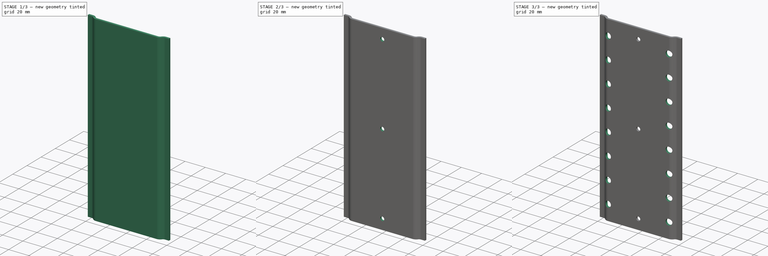
[diagram: build sequence overview — one tinted view per stage of 3, left to right]
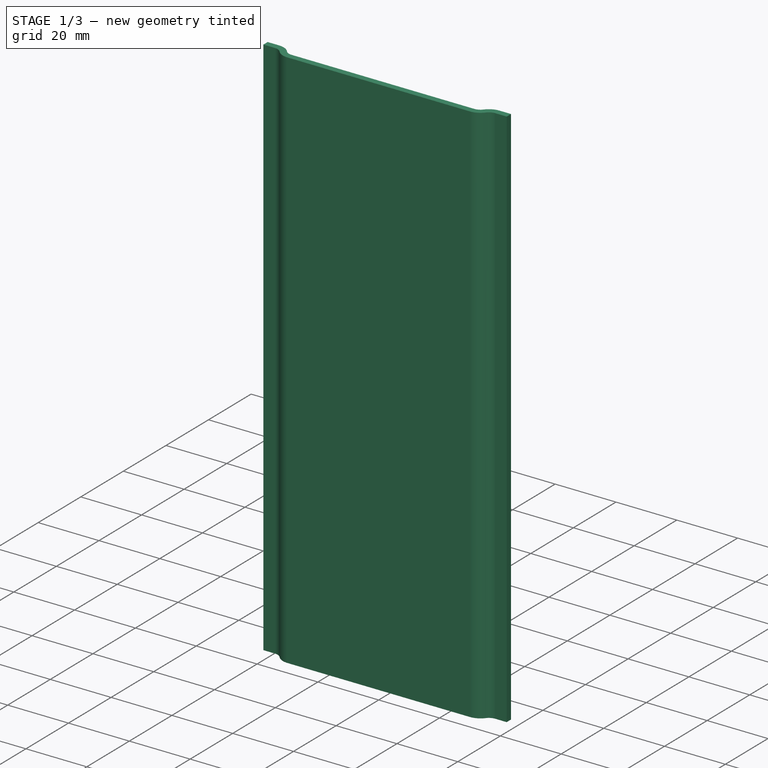
[diagram: stage 1 of 3 — iso view after this stage's code; geometry added in this stage tinted green]
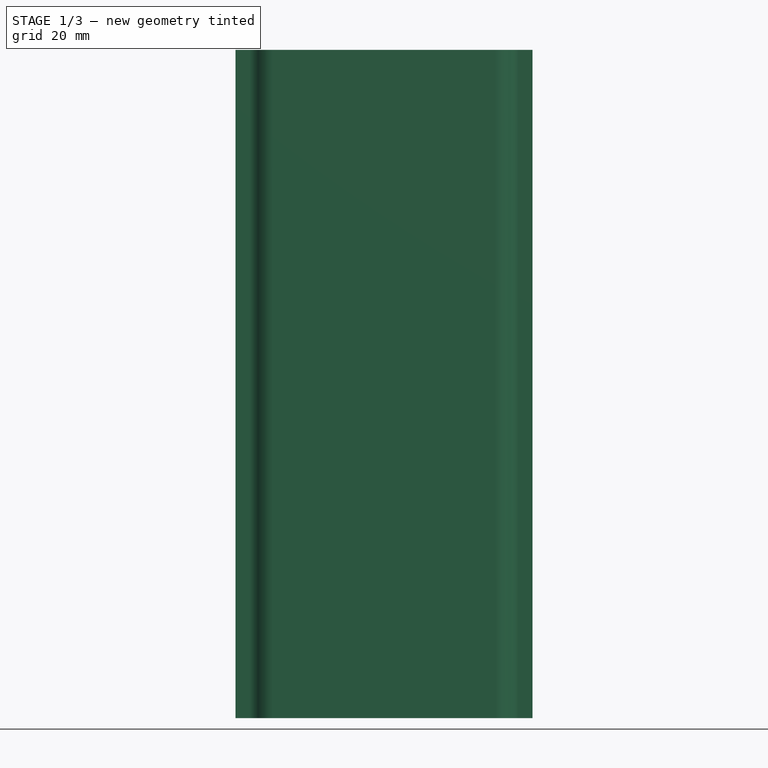
[diagram: stage 1 of 3 — front view after this stage's code; geometry added in this stage tinted green]
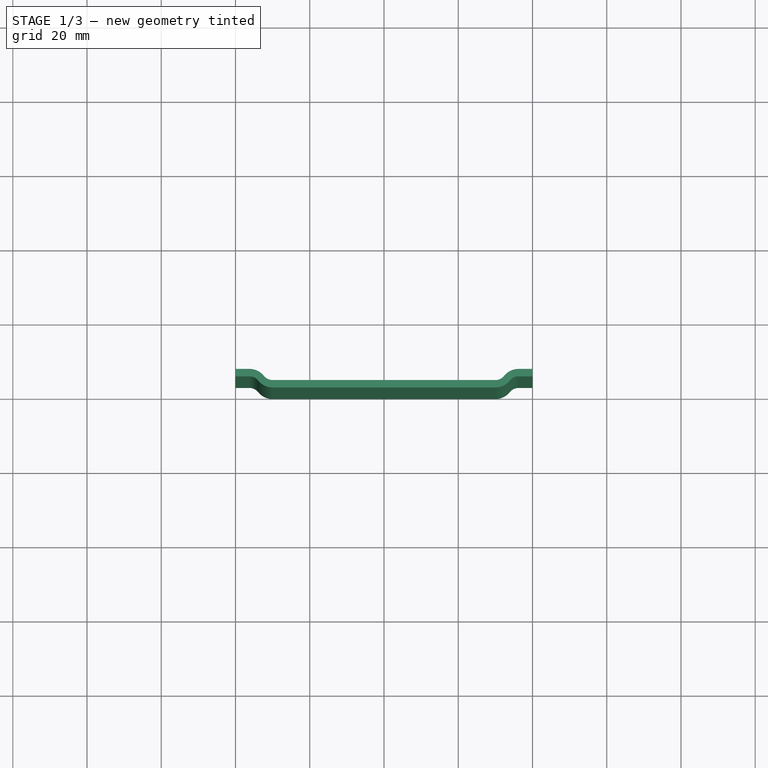
[diagram: stage 1 of 3 — top view after this stage's code; geometry added in this stage tinted green]
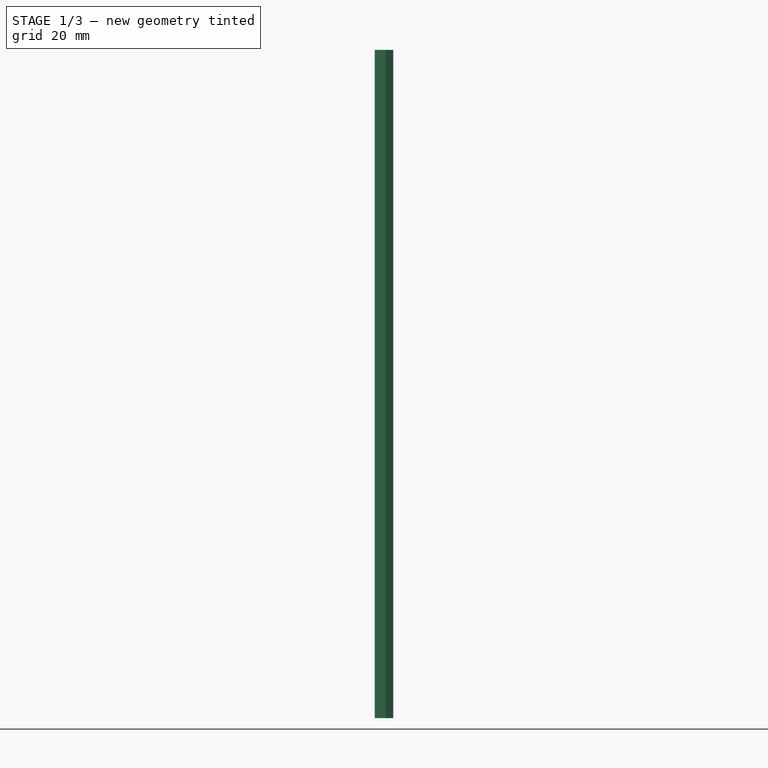
[diagram: stage 1 of 3 — right view after this stage's code; geometry added in this stage tinted green]
FCSTD DOCUMENT  (FreeCAD 1.0R39109 (Git))
Label: Rail
License: All rights reserved
LicenseURL: http://en.wikipedia.org/wiki/All_rights_reserved
objects: Sketcher::SketchObject×3, PartDesign::Mirrored×2, PartDesign::Pocket×2, PartDesign::LinearPattern×2, Spreadsheet::Sheet×1, PartDesign::Pad×1, PartDesign::MultiTransform×1, PartDesign::Body×1
note: 26 computed .brp shape members not serialized (recipe doc carries the construction recipe); baked Part::Feature solids carry a one-line shape summary decoded from their .brp

FEATURE [Sketcher::SketchObject] Sketch
  ArcFitTolerance = 1e-06
  AttachmentSupport = -> [XY_Plane]
  FullyConstrained = true
  MakeInternals = false
  MapMode = 5
  expr: Constraints[24] = Spreadsheet.corner_radius
  expr: Constraints[25] = Spreadsheet.thickness
  expr: Constraints[26] = Spreadsheet.rail_vertical_offset
  expr: Constraints[30] = Spreadsheet.width / 2
  expr: Constraints[31] = Spreadsheet.flat_width / 2
  expr: Constraints[5] = Spreadsheet.corner_radius
  sketch-geometry (11):
    g0: LineSegment StartX=-30 StartY=0 StartZ=0 EndX=0 EndY=0 EndZ=0
    g1: LineSegment StartX=-36.245 StartY=3 StartZ=0 EndX=-40 EndY=3 EndZ=0
    g2: ArcOfCircle CenterX=-30 CenterY=5 CenterZ=0 NormalX=0 NormalY=0 NormalZ=1 AngleXU=0 Radius=5 StartAngle=3.81672 EndAngle=4.71239
    g3: ArcOfCircle CenterX=-36.245 CenterY=-2e-16 CenterZ=0 NormalX=0 NormalY=0 NormalZ=1 AngleXU=0 Radius=3 StartAngle=0.675132 EndAngle=1.5708
    g4: LineSegment [constr] StartX=-36.245 StartY=-2e-16 StartZ=0 EndX=-30 EndY=5 EndZ=0
    g5: LineSegment StartX=-30 StartY=2 StartZ=0 EndX=0 EndY=2 EndZ=0
    g6: ArcOfCircle CenterX=-30 CenterY=5 CenterZ=0 NormalX=0 NormalY=0 NormalZ=1 AngleXU=0 Radius=3 StartAngle=3.81672 EndAngle=4.71239
    g7: ArcOfCircle CenterX=-36.245 CenterY=-2e-16 CenterZ=0 NormalX=0 NormalY=0 NormalZ=1 AngleXU=0 Radius=5 StartAngle=0.675132 EndAngle=1.5708
    g8: LineSegment StartX=-36.245 StartY=5 StartZ=0 EndX=-40 EndY=5 EndZ=0
    g9: LineSegment StartX=-40 StartY=5 StartZ=0 EndX=-40 EndY=3 EndZ=0
    g10: LineSegment StartX=0 StartY=2 StartZ=0 EndX=0 EndY=0 EndZ=0
  constraints (34):
    c: PointOnObject(g0,g-1)
    c: Horizontal(g1)
    c: Coincident(g2,g0)
    c: Coincident(g3,g2)
    c: Coincident(g3,g1)
    c: Radius(g3) = 3
    c: Vertical(g2,g0)
    c: Vertical(g3,g1)
    c: Coincident(g4,g3)
    c: Coincident(g4,g2)
    c: PointOnObject(g2,g4)
    c: Horizontal(g5)
    c: Vertical(g0,g5)
    c: Coincident(g6,g2)
    c: Coincident(g6,g5)
    c: PointOnObject(g6,g4)
    c: Coincident(g7,g3)
    c: Coincident(g7,g6)
    c: Vertical(g7,g1)
    c: Coincident(g8,g7)
    c: Horizontal(g8)
    c: Coincident(g9,g8)
    c: Coincident(g9,g1)
    c: Vertical(g9)
    c: Radius(g6) = 3
    c: DistanceY(g1,g8) = 2
    c: DistanceY(g0,g1) = 3
    c: Coincident(g10,g5)
    c: Coincident(g10,g0)
    c: Vertical(g10)
    c: DistanceX(g8,g5) = 40
    c: DistanceX(g5,g5) = 30
    c: Horizontal(g0)
    c: Vertical(g0,g-1)
FEATURE [Spreadsheet::Sheet] Spreadsheet
  cells = A1='width; B1(width)=80; A2='length; B2(length)=180; A3='flat_width; B3(flat_width)=60; A4='corner_radius; B4(corner_radius)=3; A5='rail_vertical_offset; B5(rail_vertical_offset)=3; A6='hole_diameter; B6(hole_diameter)=4; A7='hole_count; B7(hole_count)=3; A8='hole_edge_distance; B8(hole_edge_distance)=10; A9='thickness; B9(thickness)=2; A10='ziptie_hole_diameter; B10(ziptie_hole_diameter)=6; A11='ziptie_hole_count; B11(ziptie_hole_count)=8; A12='ziptie_hole_edge_distance; B12(ziptie_hole_edge_distance)=15
FEATURE [PartDesign::Pad] Pad
  Direction = (0,0,1)
  Length = 180
  Length2 = 10
  Profile = -> Sketch
  ReferenceAxis = -> Sketch [N_Axis]
  Suppressed = false
  Type = 0
  expr: Length = Spreadsheet.length
FEATURE [PartDesign::Mirrored] Mirrored
  BaseFeature = -> Pad
  MirrorPlane = -> Sketch [V_Axis]
  Originals = -> [Pad]
  Suppressed = false
  TransformMode = 0
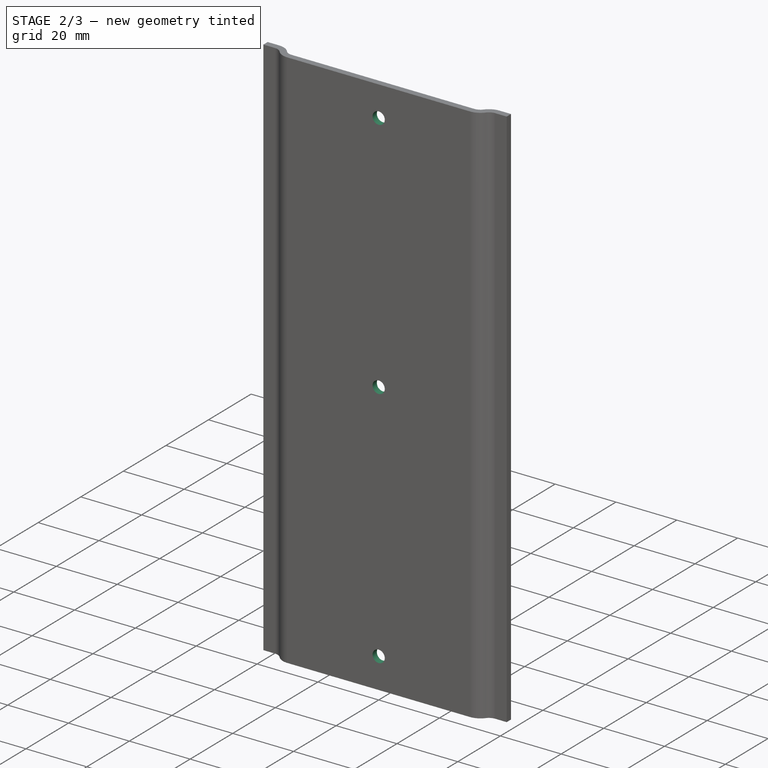
[diagram: stage 2 of 3 — iso view after this stage's code; geometry added in this stage tinted green]
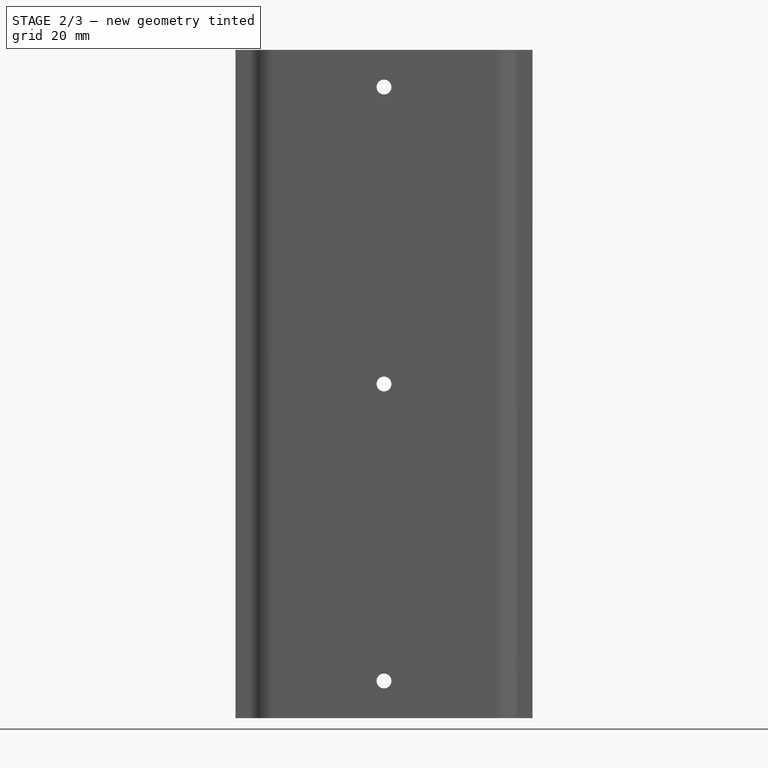
[diagram: stage 2 of 3 — front view after this stage's code; geometry added in this stage tinted green]
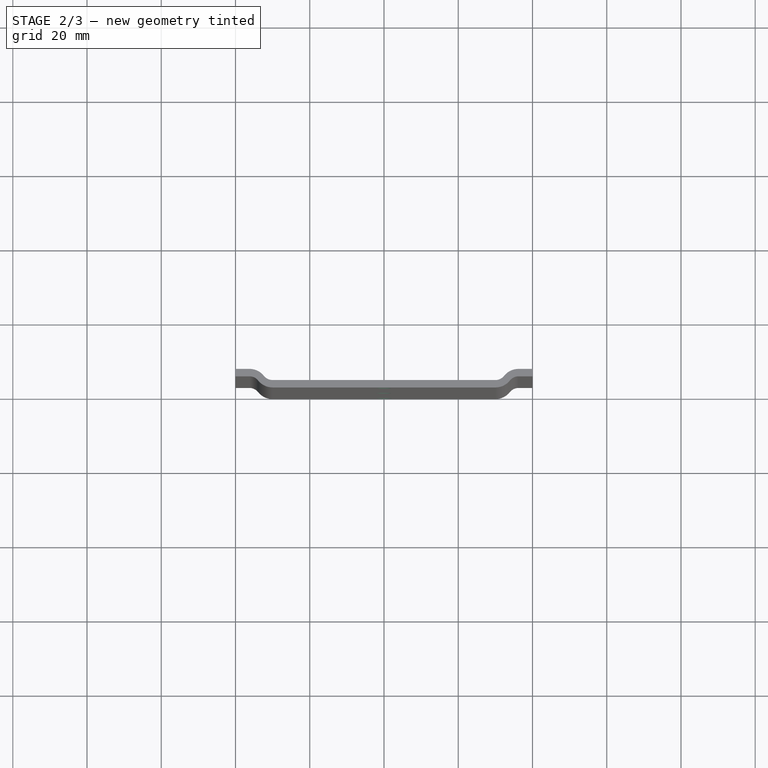
[diagram: stage 2 of 3 — top view after this stage's code; geometry added in this stage tinted green]
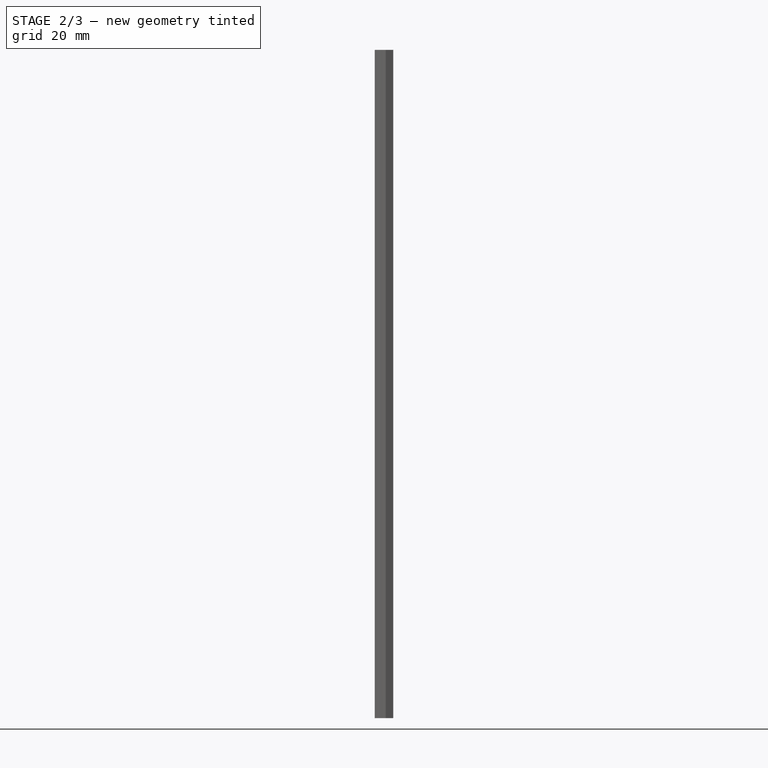
[diagram: stage 2 of 3 — right view after this stage's code; geometry added in this stage tinted green]
FEATURE [Sketcher::SketchObject] Sketch001
  ArcFitTolerance = 1e-06
  AttachmentSupport = -> [Mirrored]
  FullyConstrained = true
  MakeInternals = false
  MapMode = 5
  Placement = pos=(0,0,0) rot=(1,0,0;1.5708rad)
  expr: Constraints[1] = Spreadsheet.hole_edge_distance
  expr: Constraints[2] = Spreadsheet.hole_diameter
  sketch-geometry (1):
    g0: Circle CenterX=0 CenterY=10 CenterZ=0 NormalX=0 NormalY=0 NormalZ=1 AngleXU=0 Radius=2
  constraints (3):
    c: Vertical(g0,g-1)
    c: DistanceY(g-1,g0) = 10
    c: Diameter(g0) = 4
FEATURE [PartDesign::Pocket] Pocket
  BaseFeature = -> Mirrored
  Direction = (0,1,-2e-16)
  Length = 5
  Length2 = 5
  Profile = -> Sketch001
  ReferenceAxis = -> Sketch001 [N_Axis]
  Suppressed = false
  Type = 2
FEATURE [PartDesign::LinearPattern] LinearPattern
  BaseFeature = -> Pocket
  Direction = -> Z_Axis
  Length = 160
  Mode = 0
  Occurrences = 3
  Offset = 80
  Originals = -> [Pocket]
  Suppressed = false
  TransformMode = 0
  expr: Length = Spreadsheet.length - Spreadsheet.hole_edge_distance * 2
  expr: Occurrences = Spreadsheet.hole_count
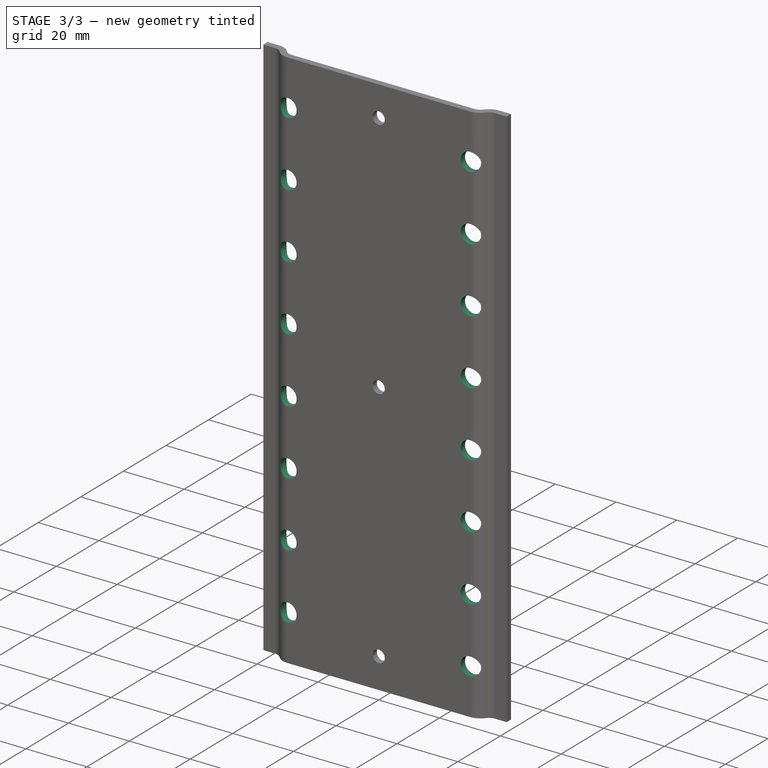
[diagram: stage 3 of 3 — iso view after this stage's code; geometry added in this stage tinted green]
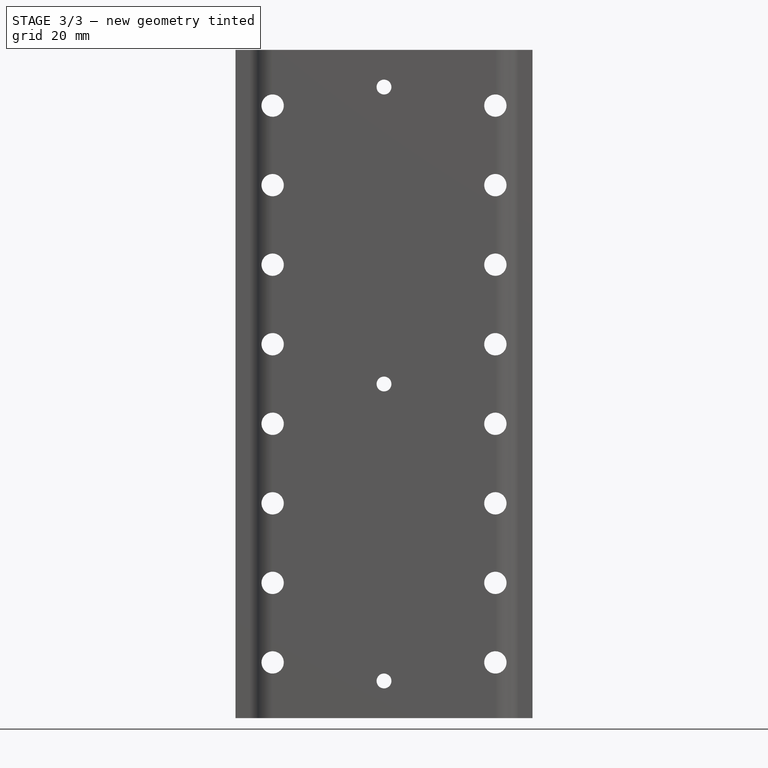
[diagram: stage 3 of 3 — front view after this stage's code; geometry added in this stage tinted green]
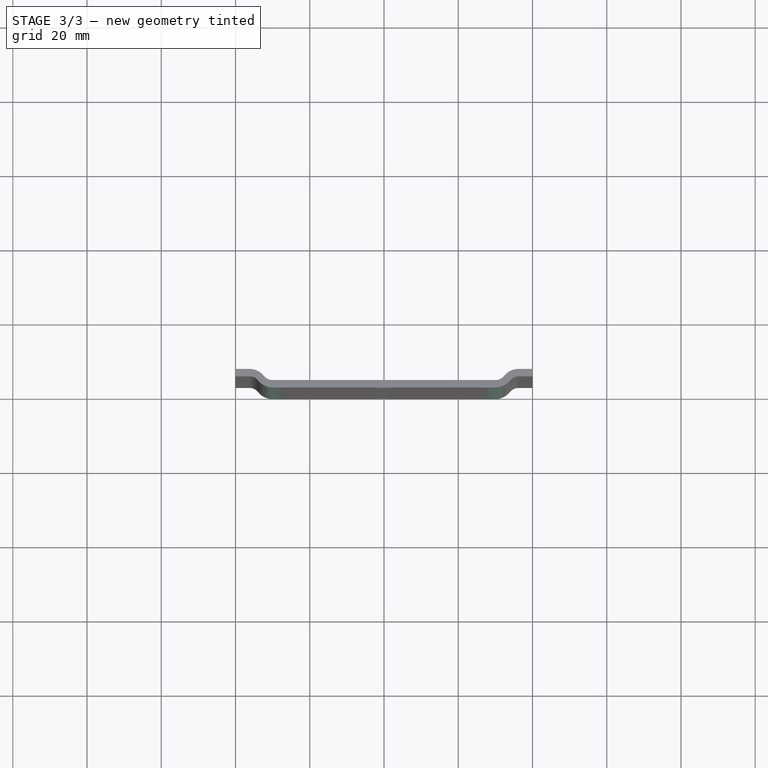
[diagram: stage 3 of 3 — top view after this stage's code; geometry added in this stage tinted green]
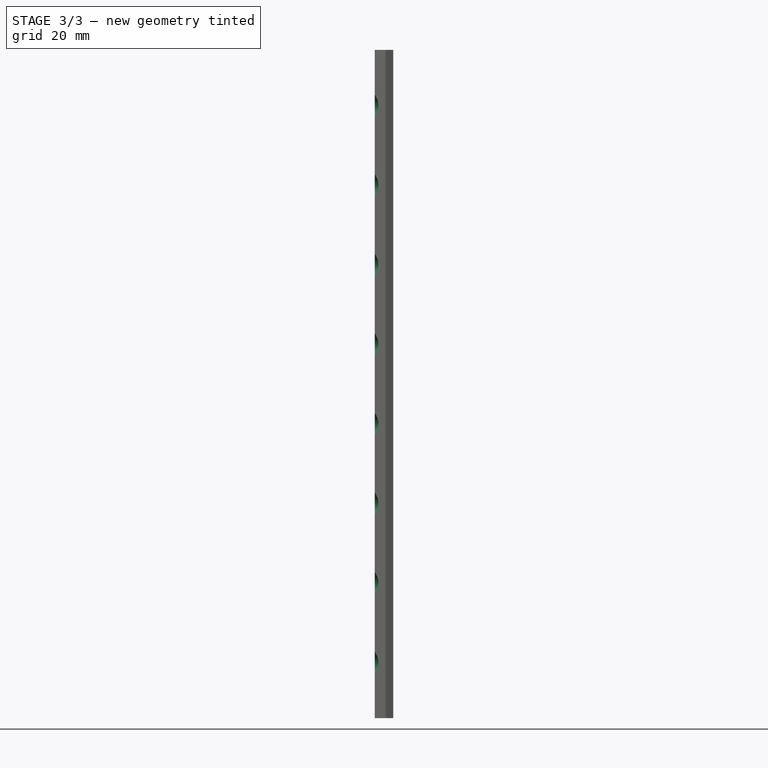
[diagram: stage 3 of 3 — right view after this stage's code; geometry added in this stage tinted green]
FEATURE [Sketcher::SketchObject] Sketch002
  ArcFitTolerance = 1e-06
  AttachmentSupport = -> [LinearPattern]
  FullyConstrained = true
  MakeInternals = false
  MapMode = 5
  Placement = pos=(0,0,0) rot=(1,0,0;1.5708rad)
  expr: Constraints[0] = Spreadsheet.ziptie_hole_edge_distance
  expr: Constraints[1] = Spreadsheet.ziptie_hole_diameter
  expr: Constraints[2] = Spreadsheet.flat_width / 2
  sketch-geometry (1):
    g0: Circle CenterX=-30 CenterY=15 CenterZ=0 NormalX=0 NormalY=0 NormalZ=1 AngleXU=0 Radius=3
  constraints (3):
    c: DistanceY(g-1,g0) = 15
    c: Diameter(g0) = 6
    c: DistanceX(g0,g-1) = 30
FEATURE [PartDesign::Pocket] Pocket001
  BaseFeature = -> LinearPattern
  Direction = (0,1,-2e-16)
  Length = 5
  Length2 = 5
  Profile = -> Sketch002
  ReferenceAxis = -> Sketch002 [N_Axis]
  Suppressed = false
  Type = 0
FEATURE [PartDesign::LinearPattern] LinearPattern001
  Direction = -> Z_Axis
  Length = 150
  Mode = 0
  Occurrences = 8
  Offset = 21.4286
  Suppressed = false
  TransformMode = 0
  expr: Length = Spreadsheet.length - Spreadsheet.ziptie_hole_edge_distance * 2
  expr: Occurrences = Spreadsheet.ziptie_hole_count
FEATURE [PartDesign::Mirrored] Mirrored001
  MirrorPlane = -> Sketch002 [V_Axis]
  Suppressed = false
  TransformMode = 0
FEATURE [PartDesign::MultiTransform] MultiTransform
  BaseFeature = -> Pocket001
  Originals = -> [Pocket001]
  Suppressed = false
  TransformMode = 0
  Transformations = -> [LinearPattern001,Mirrored001]
FEATURE [PartDesign::Body] Body
  AllowCompound = false
  Group = -> [Sketch,Pad,Mirrored,Sketch001,Pocket,LinearPattern,Sketch002,Pocket001,MultiTransform,LinearPattern001,Mirrored001]
  Origin = -> Origin
  Tip = -> MultiTransform
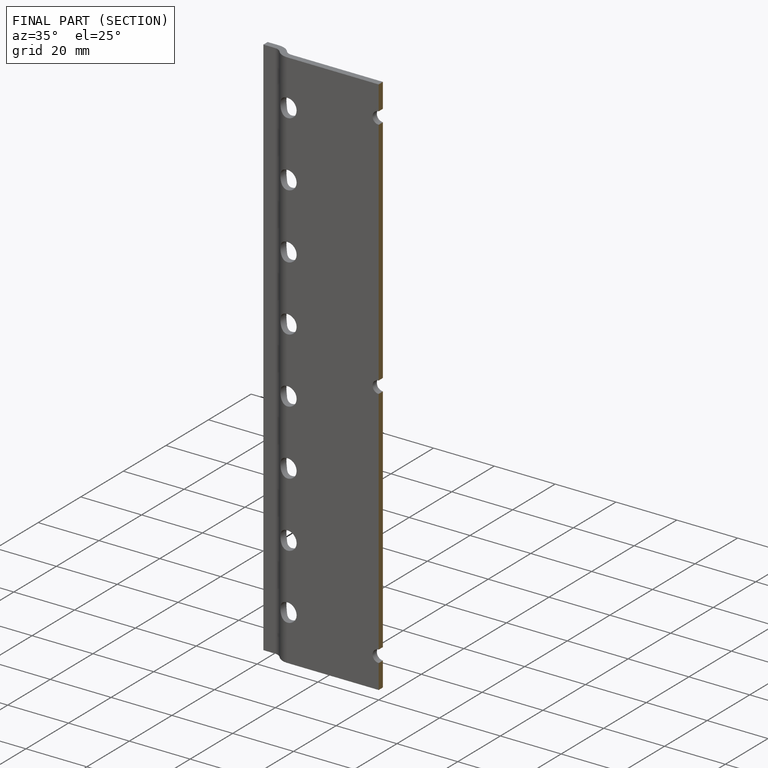
[diagram: finished part — half-section view (interior)]
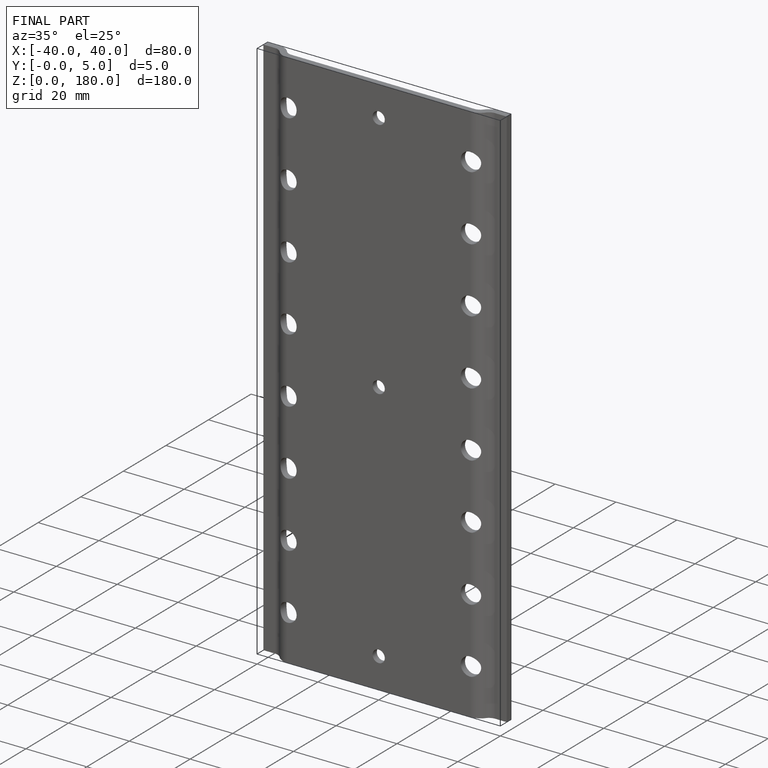
[diagram: finished part — iso view with bounding-box wireframe]
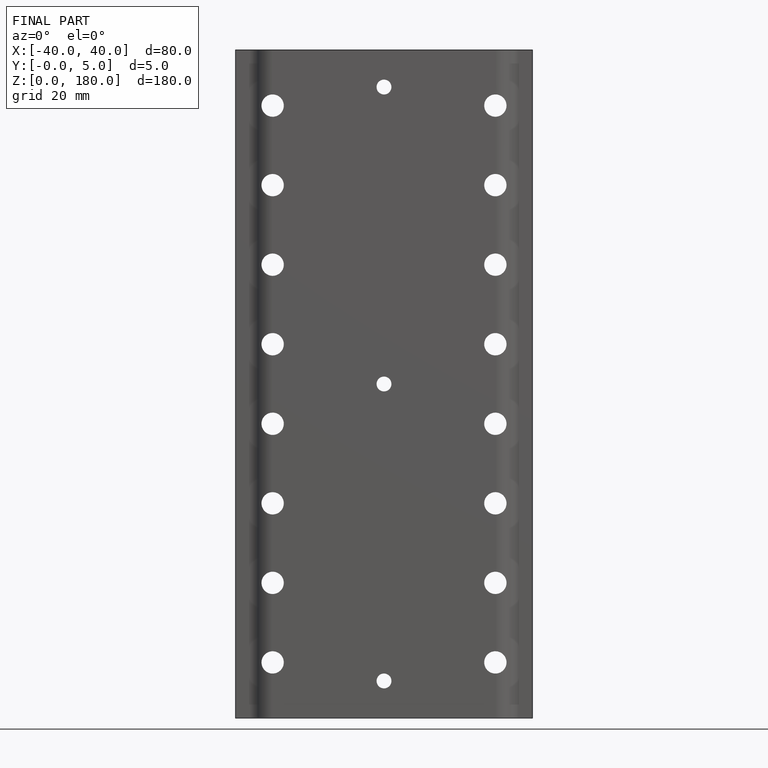
[diagram: finished part — front view with bounding-box wireframe]
